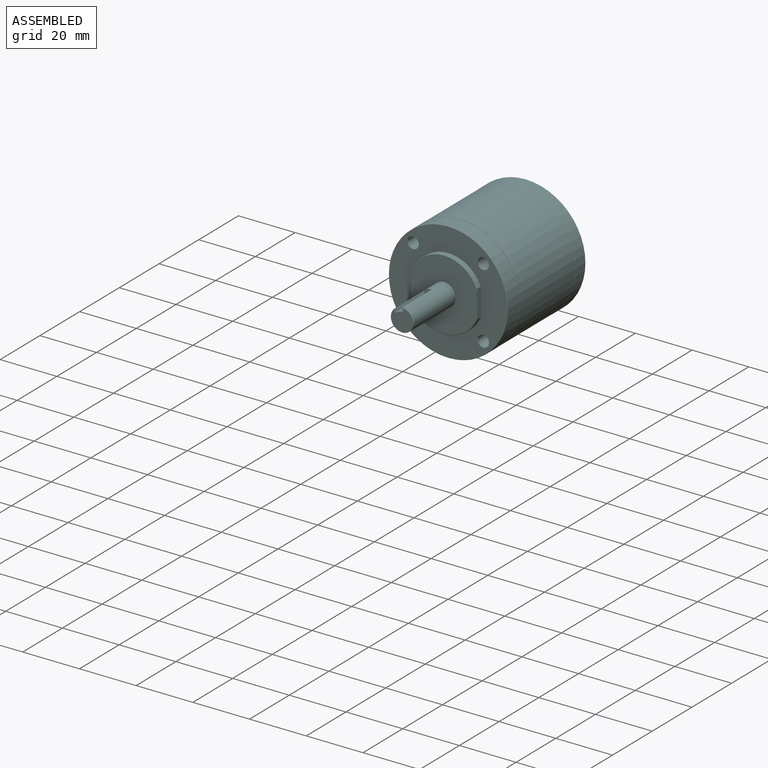
[diagram: assembled view]
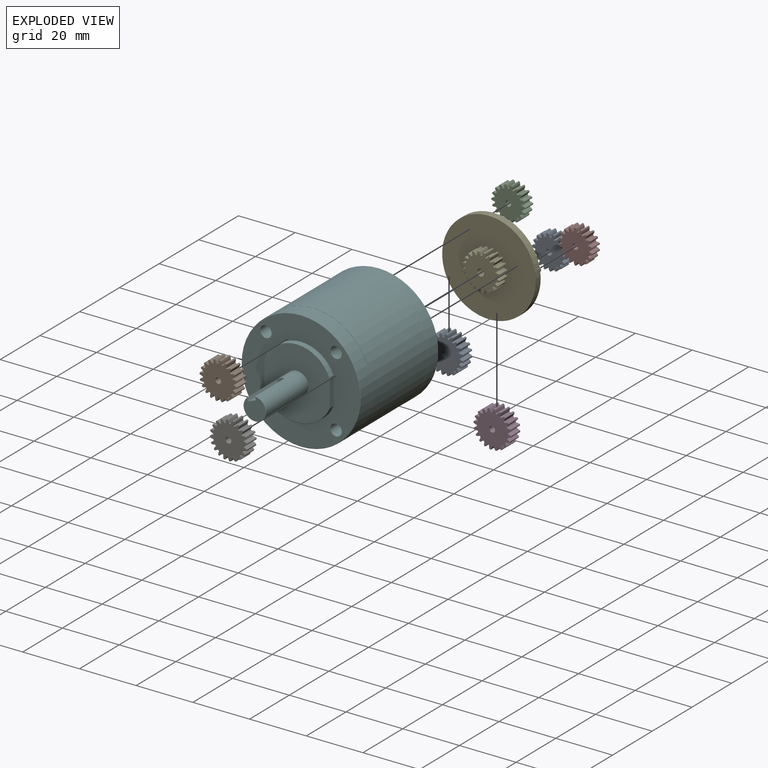
[diagram: exploded view]
GUIDED TOUR — MATED ASSEMBLY WITH SUBASSEMBLIES (Onshape document 576380d9e4b0a0decb21f6b3, AutoMate assembly 576380d9e4b0a0decb21f6b3_9d2c38b965b84d0261af29e2_6733fc3b9937ee8f59899940_default)

This assembly has 12 component occurrences arranged in 9 top-level units: 8 individual components plus 1 subassembly (S0). The tour has two levels: first the top level, where each subassembly is treated as one rigid unit; then each subassembly is toured internally in its own section (nesting deeper than one subassembly level is flattened into its subassembly's section).

Components are labeled P0..P11 across the whole record; subassembly units are labeled S0..S0. A mate is a constraint between two units; its type names the relative motion it leaves free:
  CYLINDRICAL — leaves both rotation about and translation along the listed axis free,
  FASTENED — locks the two components together rigidly (no relative motion),
  PLANAR — leaves sliding in the plane through the listed point (normal = the listed direction) and rotation about that normal free,
  REVOLUTE — leaves rotation about the listed axis free (a hinge),
  SLIDER — leaves translation along the listed axis free.
Axis/direction vectors are unit vectors and 'through' points are millimeter coordinates, both in the assembly's world frame.

TOP-LEVEL MATES (between units; each subassembly's internal mates are listed in its own section)
  1. REVOLUTE "Revolute 4": P0 <-> P4, axis (0.000, -1.000, 0.000) through (42.69, 16.38, 28.93) mm
  2. REVOLUTE "Revolute 3": S0 <-> P3, axis (0.000, 1.000, 0.000) through (53.51, 8.58, 28.40) mm
  3. REVOLUTE "Revolute 6": P4 <-> P2, axis (0.000, 1.000, 0.000) through (41.67, 16.38, 51.42) mm
  4. REVOLUTE "Revolute 7": P11 <-> S0, axis (0.000, -1.000, 0.000) through (36.61, 8.58, 35.63) mm
  5. PLANAR "Planar 1": P4 <-> P9, direction (0.000, -1.000, 0.000) through (48.68, 13.88, 40.47) mm
  6. REVOLUTE "Revolute 1": P9 <-> S0, axis (0.000, -1.000, 0.000) through (60.74, 8.58, 45.31) mm
  7. REVOLUTE "Revolute 5": P10 <-> P4, axis (0.000, -1.000, 0.000) through (61.66, 16.38, 41.06) mm
  8. REVOLUTE "Revolute 2": P1 <-> S0, axis (0.000, -1.000, 0.000) through (43.84, 8.58, 52.54) mm
  9. CYLINDRICAL "Cylindrical 1": S0 <-> P4, axis (0.000, 1.000, 0.000) through (48.68, 24.48, 40.47) mm

TOP-LEVEL ASSEMBLY ORDER
  1. P4 — the base component [order heuristic]
  2. P0 — core [order heuristic]
  3. P2 — core [order heuristic]
  4. S0 — core [order heuristic]
  5. P1 — core [order heuristic]
  6. P9 [order verified]
  7. P11 [order verified]
  8. P3 [order verified]
  9. P10 [order verified]
Order-tag legend:
  [order verified] — this step's position reverses a verified removal order: the component was checked to insert without passing through the ones already placed.
  [order heuristic] — the first 5 components form the assembly's core: parts whose collision-free extraction could not be verified, listed in mate-graph order.

Of the 12 component occurrences, 11 carry the full construction recipe — the FeatureScript program that regenerates the part's solid from scratch; the rest are supplied as boundary geometry only. Each toured unit is shown spotlighted twice — assembled, then exploded with a leader line back to its socket (green = recipe-attached component, orange = geometry-only, blue = subassembly unit; the rest desaturated gray).
NOTE — document 3 of 3 of this assembly tour. The two overview renders and the header above are repeated from document 1; the component sections below continue where the previous document stopped.
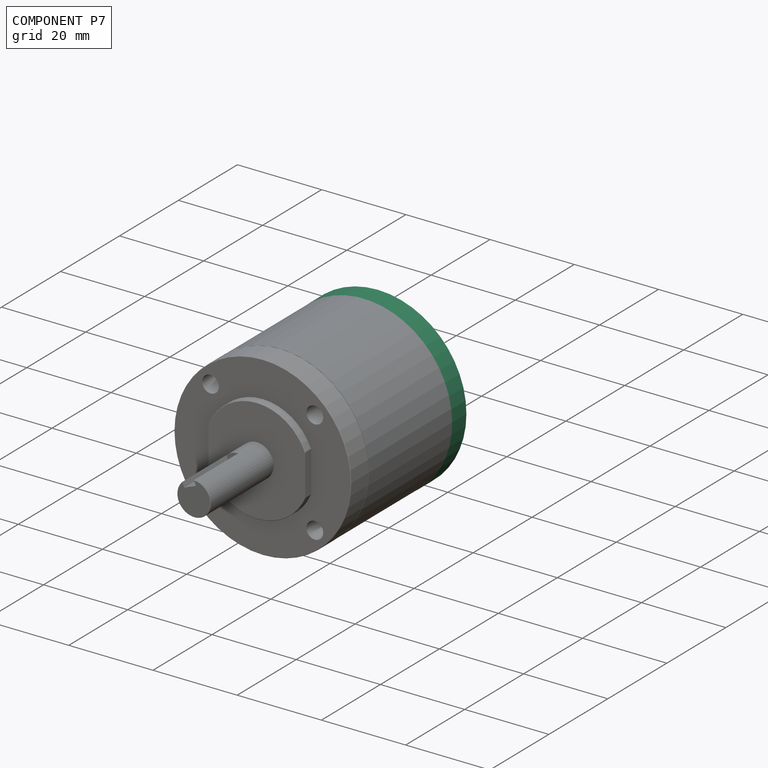
[diagram: component P7 — assembled]
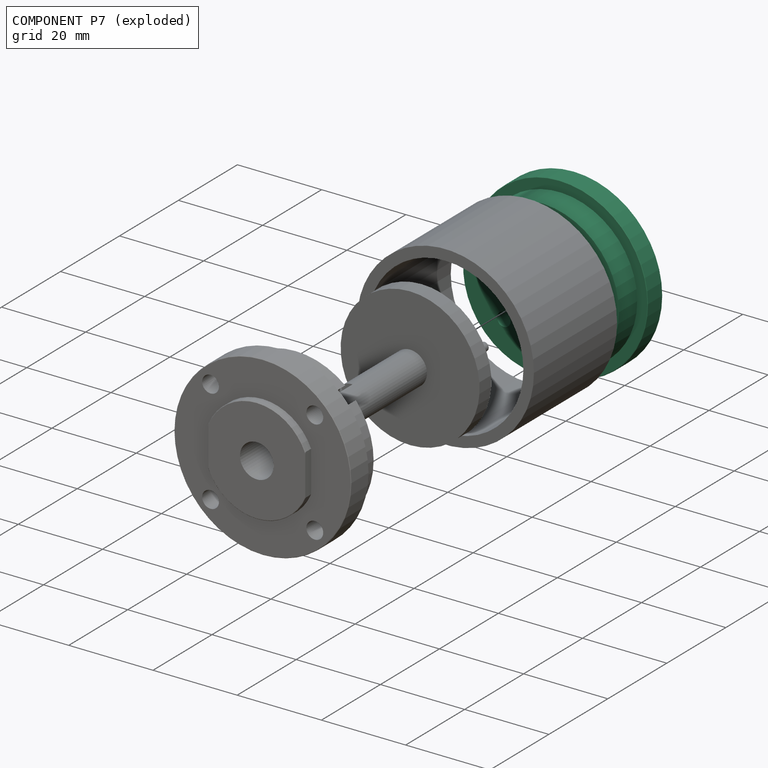
[diagram: component P7 — exploded]
COMPONENT P7 — recipe-attached (CADFS 00178038, mesh-verified: the recipe's output STEP matches this component's geometry to below the mesh-comparison resolution (tessellation chordal tolerance ~0.0907 mm)).
Held by: FASTENED mate "Fastened 1" to P8; FASTENED mate "Fastened 1" to P8.
Construction recipe (FeatureScript — the CAD program that rebuilds this solid; sketch coordinates are in the units given by the * unit suffixes, e.g. mm):

FeatureScript 1540;
import(path : "onshape/std/geometry.fs", version : "1540.0");
import(path : "onshape/std/common.fs", version : "1540.0");
const mm = millimeter;
const VERTEX = EntityType.VERTEX;
const EDGE = EntityType.EDGE;
const FACE = EntityType.FACE;
const BODY = EntityType.BODY;
function v(x, y){return vector(x, y);}
function OD(order){return orderDisambiguation(order);}
function OSD(set){return originalSetDisambiguation(set);}
function TD(topology){return topologyDisambiguation(topology);}
function TDD(query){return trueDependencyDisambiguation(query);}
function sQuery(a, b, c) {return sketchEntityQuery(a, b, c);}

annotation { "Feature Type Name" : "Feature", "Feature Type Description" : "" }
export const myFeature = defineFeature(function(context is Context, id is Id, definition is map)
    precondition{}
    {
        {
            var Q0;
            Q0=qCreatedBy(makeId("Front.planeOp"),FACE);
            var sketch = newSketch(context, id + "F0", { "sketchPlane" : qUnion([Q0])});
            skCircle(sketch, "E0", {"center": v(0, 0) * mm, "radius": 21 * mm});
            skSolve(sketch);
        }
        {
            var Q0;
            Q0=qSketchRegion(id+"F0",true);
            extrude(context, id + "F1", {"entities" : qUnion([Q0]), "oppositeDirection" : true, "depth" : 5 * mm});
        }
        {
            var Q0;
            Q0=qCreatedBy(makeId("Front.planeOp"),FACE);
            var sketch = newSketch(context, id + "F2", { "sketchPlane" : qUnion([Q0])});
            skCircle(sketch, "E1", {"center": v(0, 0) * mm, "radius": 18.5 * mm});
            skSolve(sketch);
        }
        {
            var Q0;
            Q0=qSketchRegion(id+"F2",true);
            extrude(context, id + "F3", {"entities" : qUnion([Q0]), "operationType" : NewBodyOperationType.ADD, "depth" : 6.2 * mm});
        }
        {
            var Q0;
            Q0=qCreatedBy(makeId("Front.planeOp"),FACE);
            var sketch = newSketch(context, id + "F4", { "sketchPlane" : qUnion([Q0])});
            skCircle(sketch, "E2", {"center": v(8.84, 8.84) * mm, "radius": 1.6 * mm});
            skCircle(sketch, "E3", {"center": v(-10.25, 10.25) * mm, "radius": 2.1 * mm});
            skCircle(sketch, "E4", {"center": v(-8.84, -8.84) * mm, "radius": 1.6 * mm});
            skCircle(sketch, "E5", {"center": v(10.25, -10.25) * mm, "radius": 2.1 * mm});
            skCircle(sketch, "E6", {"center": v(0, 0) * mm, "radius": 8.75 * mm});
            skLineSegment(sketch, "E7", {"start": v(-23.4, -23.4) * mm, "end": v(23.73, 23.73) * mm});
            skLineSegment(sketch, "E8", {"start": v(-25.41, 25.41) * mm, "end": v(25.28, -25.28) * mm});
            skSolve(sketch);
        }
        {
            var Q0;
            Q0=qSketchRegion(id+"F4",true);
            extrude(context, id + "F5", {"entities" : qUnion([Q0]), "operationType" : NewBodyOperationType.REMOVE, "depth" : 6.2 * mm, "hasSecondDirection" : true, "secondDirectionOppositeDirection" : true, "secondDirectionDepth" : 5 * mm});
        }
        {
            var Q0;
            Q0=makeQuery(id+"F1.opExtrude","CAP_FACE",FACE,{"disambiguationData":[OSD([sQuery(id+"F0.wireOp",EDGE,"E0")])],"isStart":false});
            var Q1;
            Q1=makeQuery(id+"F1.opExtrude","CAP_EDGE",EDGE,{"disambiguationData":[OSD([sQuery(id+"F0.wireOp",EDGE,"E0")])],"isStart":true});
            chamfer(context, id + "F6", {"entities" : qUnion([Q0, Q1]), "width" : 0.1 * mm, "tangentPropagation" : true});
        }
    });
PROVENANCE & LICENSES
Assembly (occurrences, transforms, mates, per-part STEP geometry): AutoMate dataset, Zenodo record 7776208, CC0.
Construction recipes: CADFS (HuggingFace VladPyatov/CADFS, CC-BY-4.0, layered over the ABC dataset), FeatureScript reconstruction programs keyed by ABC model id.
Join: ABC meta listings map ABC model id -> Onshape documentId; within a shared document, parts are matched by geometric signature (bounding-box dims + volume at 0.1% relative tolerance, exact B-rep face/solid counts).
Verification: 11 of this assembly's 12 components carry a recipe attachment, and every attachment is mesh-verified: the CADFS STEP and the AutoMate member STEP were compared as meshes in their shared local frame (symmetric sampled-point-to-mesh distance); worst across the 11 attachments: below the mesh-comparison resolution (tessellation chordal tolerance ~0.0985 mm) on a 66 mm part.
Renders: orthographic iso camera (az 35 / el 25); the floor grid conveys scale (grid pitch printed in each image; no ruler). In the exploded view each component is displaced by its stored offset vector: the offsets alone carry the explosion direction (mate normal/axis signs are not orientation cues and do not encode it), and separation distances are assigned per mate-chain, not proportionally to assembly-order depth.
